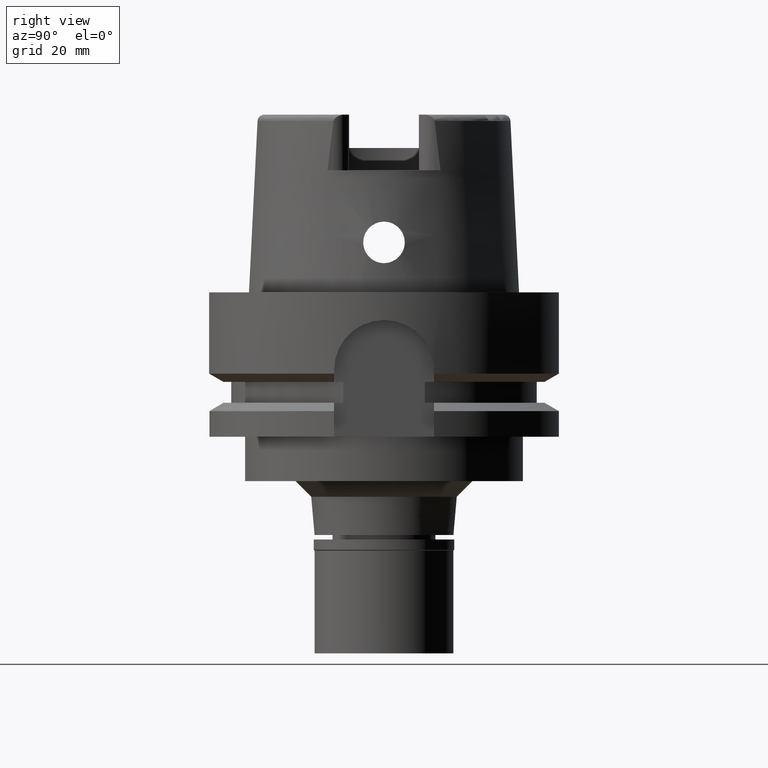
[diagram: clean part render]
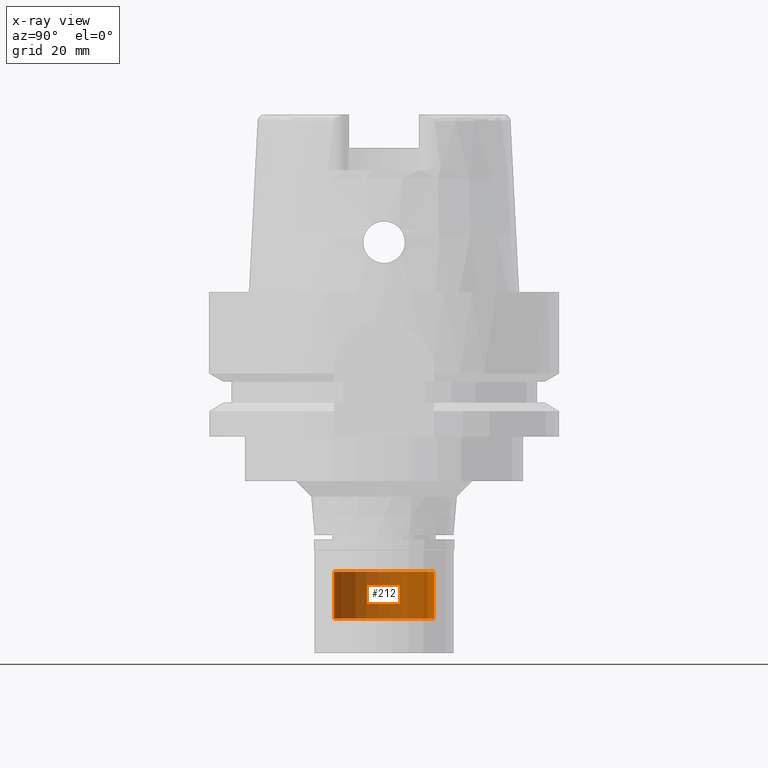
[diagram: x-ray — body ghosted, one internal face saturated and labeled with its STEP entity id]
A machine part, right view, then the same camera in x-ray: the body is ghosted and one INTERNAL B-rep face — a face not visible from any outside direction — is saturated and labeled: STEP entity #212.
In plain terms, the highlighted cylindrical surface (partial cylindrical patch) has radius 9 mm, axis along (0, 0, 1).
Its self-contained STEP definition (entity closure, byte-faithful):
#106 = VERTEX_POINT ( 'NONE', #580 ) ;
#212 = ADVANCED_FACE ( 'NONE', ( #5327 ), #668, .T. ) ;
#452 = VERTEX_POINT ( 'NONE', #2119 ) ;
#462 = CIRCLE ( 'NONE', #3014, 8.999999999998999911 ) ;
#468 = VERTEX_POINT ( 'NONE', #5635 ) ;
#580 = CARTESIAN_POINT ( 'NONE',  ( 0.0000000000000000000, 8.999999999998999911, -50.29999999999999716 ) ) ;
#652 = AXIS2_PLACEMENT_3D ( 'NONE', #1175, #1208, #4166 ) ;
#668 = CYLINDRICAL_SURFACE ( 'NONE', #4366, 8.999999999998999911 ) ;
#1077 = ORIENTED_EDGE ( 'NONE', *, *, #3253, .T. ) ;
#1175 = CARTESIAN_POINT ( 'NONE',  ( 0.0000000000000000000, 0.0000000000000000000, -50.29999999999999716 ) ) ;
#1202 = VERTEX_POINT ( 'NONE', #3577 ) ;
#1208 = DIRECTION ( 'NONE',  ( 0.0000000000000000000, 0.0000000000000000000, -1.000000000000000000 ) ) ;
#1313 = LINE ( 'NONE', #2624, #1924 ) ;
#1451 = ORIENTED_EDGE ( 'NONE', *, *, #4339, .T. ) ;
#1566 = DIRECTION ( 'NONE',  ( 0.0000000000000000000, 0.0000000000000000000, 1.000000000000000000 ) ) ;
#1612 = DIRECTION ( 'NONE',  ( 0.0000000000000000000, 1.000000000000000000, 0.0000000000000000000 ) ) ;
#1735 = DIRECTION ( 'NONE',  ( 0.0000000000000000000, 0.0000000000000000000, -1.000000000000000000 ) ) ;
#1822 = ORIENTED_EDGE ( 'NONE', *, *, #3152, .F. ) ;
#1837 = ORIENTED_EDGE ( 'NONE', *, *, #5143, .T. ) ;
#1924 = VECTOR ( 'NONE', #1735, 1000.000000000000000 ) ;
#2119 = CARTESIAN_POINT ( 'NONE',  ( 0.0000000000000000000, -8.999999999998999911, -50.29999999999999716 ) ) ;
#2365 = VECTOR ( 'NONE', #4185, 1000.000000000000000 ) ;
#2366 = DIRECTION ( 'NONE',  ( 0.0000000000000000000, 1.000000000000000000, 0.0000000000000000000 ) ) ;
#2624 = CARTESIAN_POINT ( 'NONE',  ( 0.0000000000000000000, 8.999999999998999911, -50.29999999999999716 ) ) ;
#3014 = AXIS2_PLACEMENT_3D ( 'NONE', #3789, #5537, #1612 ) ;
#3152 = EDGE_CURVE ( 'NONE', #452, #468, #3373, .T. ) ;
#3253 = EDGE_CURVE ( 'NONE', #1202, #468, #462, .T. ) ;
#3344 = EDGE_LOOP ( 'NONE', ( #1077, #1822, #1837, #1451 ) ) ;
#3373 = LINE ( 'NONE', #3735, #2365 ) ;
#3577 = CARTESIAN_POINT ( 'NONE',  ( 0.0000000000000000000, 8.999999999998999911, -58.79999999999999716 ) ) ;
#3735 = CARTESIAN_POINT ( 'NONE',  ( 0.0000000000000000000, -8.999999999998999911, -50.29999999999999716 ) ) ;
#3789 = CARTESIAN_POINT ( 'NONE',  ( 0.0000000000000000000, 0.0000000000000000000, -58.79999999999999716 ) ) ;
#4138 = CARTESIAN_POINT ( 'NONE',  ( 0.0000000000000000000, 0.0000000000000000000, 0.0000000000000000000 ) ) ;
#4166 = DIRECTION ( 'NONE',  ( 0.0000000000000000000, -1.000000000000000000, 0.0000000000000000000 ) ) ;
#4185 = DIRECTION ( 'NONE',  ( 0.0000000000000000000, 0.0000000000000000000, -1.000000000000000000 ) ) ;
#4339 = EDGE_CURVE ( 'NONE', #106, #1202, #1313, .T. ) ;
#4366 = AXIS2_PLACEMENT_3D ( 'NONE', #4138, #1566, #2366 ) ;
#5143 = EDGE_CURVE ( 'NONE', #452, #106, #5309, .T. ) ;
#5309 = CIRCLE ( 'NONE', #652, 8.999999999998999911 ) ;
#5327 = FACE_OUTER_BOUND ( 'NONE', #3344, .T. ) ;
#5537 = DIRECTION ( 'NONE',  ( 0.0000000000000000000, 0.0000000000000000000, 1.000000000000000000 ) ) ;
#5635 = CARTESIAN_POINT ( 'NONE',  ( 0.0000000000000000000, -8.999999999998999911, -58.79999999999999716 ) ) ;